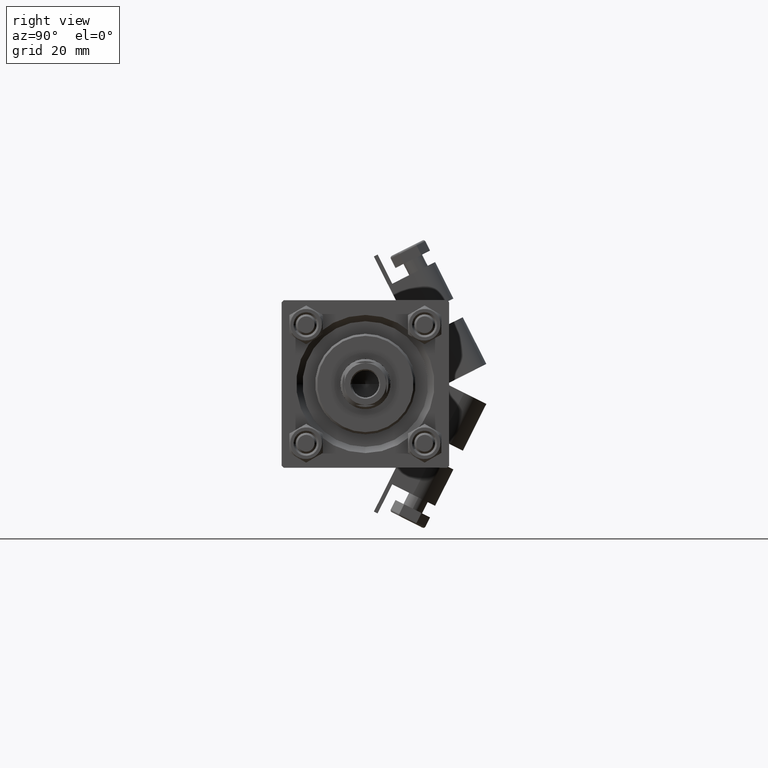
[diagram: clean part render]
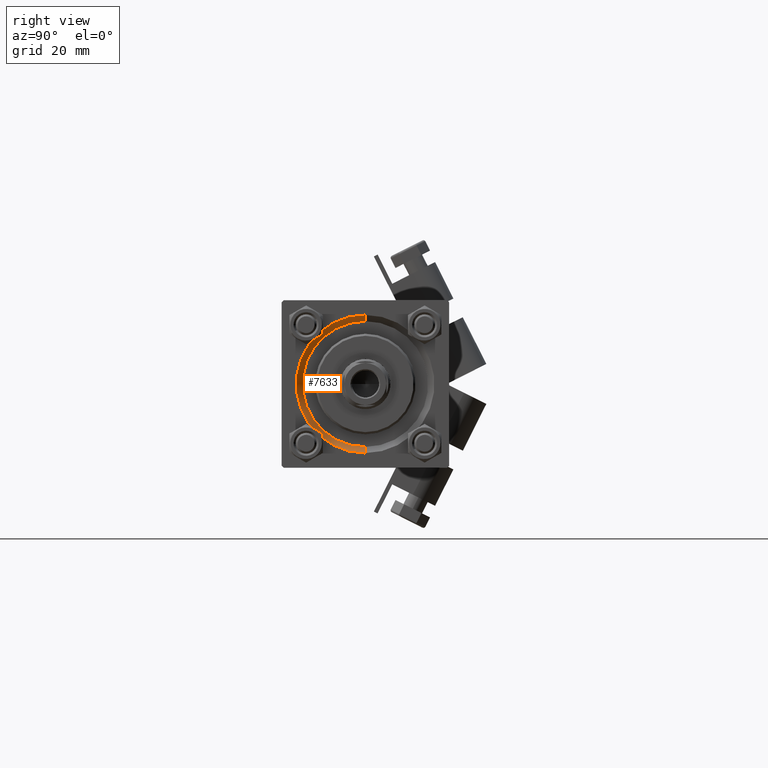
[diagram: same view with one face highlighted and labeled with its STEP entity id]
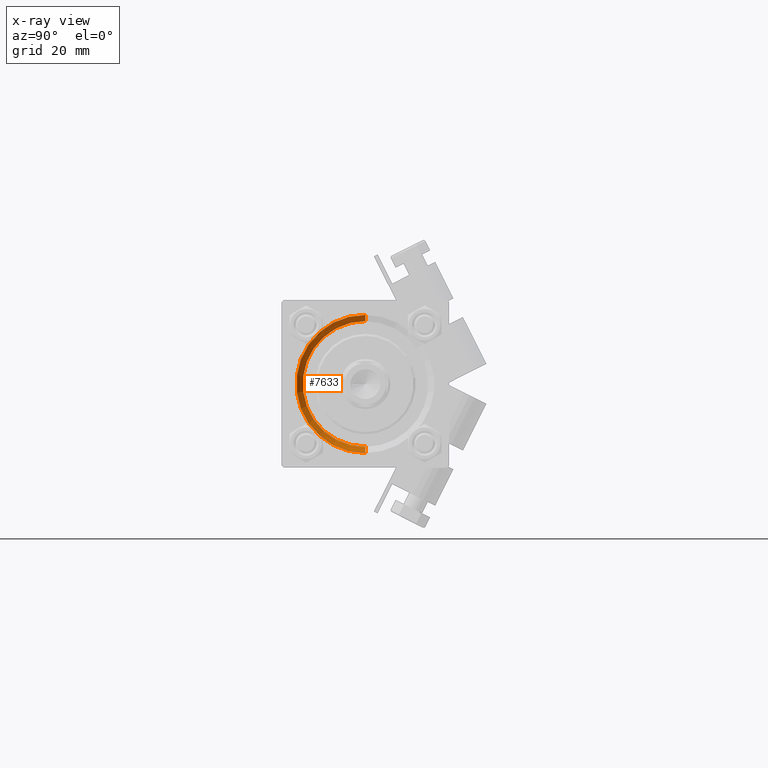
[diagram: x-ray of the same camera — body ghosted, the highlighted face saturated]
A machine part, right view. The second image highlights one B-rep face of the part: STEP entity #7633.
The next image is the same camera in x-ray: the body ghosted, the highlighted face saturated — about 0% of this face is hidden behind the body in this view.
In plain terms, the highlighted conical surface has half-angle 45 deg.
Its self-contained STEP definition (entity closure, byte-faithful):
#905 = DIRECTION ( 'NONE',  ( 0.7071067811865474617, 8.659560562354932858E-17, 0.7071067811865474617 ) ) ;
#3782 = DIRECTION ( 'NONE',  ( -1.000000000000000000, -0.000000000000000000, -0.000000000000000000 ) ) ;
#6159 = EDGE_CURVE ( 'NONE', #15897, #31803, #33470, .T. ) ;
#6543 = ORIENTED_EDGE ( 'NONE', *, *, #6159, .F. ) ;
#7633 = ADVANCED_FACE ( 'NONE', ( #7932 ), #30696, .F. ) ;
#7932 = FACE_OUTER_BOUND ( 'NONE', #28712, .T. ) ;
#12533 = CARTESIAN_POINT ( 'NONE',  ( 119.0000000000000142, 0.000000000000000000, 0.000000000000000000 ) ) ;
#13307 = CARTESIAN_POINT ( 'NONE',  ( 117.5000000000000000, 0.000000000000000000, -15.00000000000000000 ) ) ;
#13868 = VERTEX_POINT ( 'NONE', #32118 ) ;
#15897 = VERTEX_POINT ( 'NONE', #13307 ) ;
#16863 = CARTESIAN_POINT ( 'NONE',  ( 117.5000000000000000, 1.836970198721029589E-15, 15.00000000000000000 ) ) ;
#17419 = CIRCLE ( 'NONE', #19053, 16.50000000000001421 ) ;
#17501 = VERTEX_POINT ( 'NONE', #17606 ) ;
#17606 = CARTESIAN_POINT ( 'NONE',  ( 117.5000000000000000, 1.836970198721029589E-15, 15.00000000000000000 ) ) ;
#19053 = AXIS2_PLACEMENT_3D ( 'NONE', #12533, #3782, #27696 ) ;
#20466 = LINE ( 'NONE', #16863, #32153 ) ;
#21113 = ORIENTED_EDGE ( 'NONE', *, *, #33876, .F. ) ;
#23335 = AXIS2_PLACEMENT_3D ( 'NONE', #27734, #23880, #42903 ) ;
#23880 = DIRECTION ( 'NONE',  ( 1.000000000000000000, 0.000000000000000000, 0.000000000000000000 ) ) ;
#25627 = AXIS2_PLACEMENT_3D ( 'NONE', #41619, #44971, #33892 ) ;
#26292 = EDGE_CURVE ( 'NONE', #17501, #13868, #20466, .T. ) ;
#27696 = DIRECTION ( 'NONE',  ( 0.000000000000000000, 0.000000000000000000, 1.000000000000000000 ) ) ;
#27734 = CARTESIAN_POINT ( 'NONE',  ( 117.5000000000000000, 0.000000000000000000, 0.000000000000000000 ) ) ;
#28712 = EDGE_LOOP ( 'NONE', ( #47652, #50150, #21113, #6543 ) ) ;
#28920 = CIRCLE ( 'NONE', #25627, 15.00000000000000000 ) ;
#29385 = EDGE_CURVE ( 'NONE', #17501, #15897, #28920, .T. ) ;
#29870 = DIRECTION ( 'NONE',  ( 0.7071067811865474617, 0.000000000000000000, -0.7071067811865474617 ) ) ;
#30696 = CONICAL_SURFACE ( 'NONE', #23335, 15.00000000000000000, 0.7853981633974482790 ) ;
#31476 = VECTOR ( 'NONE', #29870, 1000.000000000000114 ) ;
#31803 = VERTEX_POINT ( 'NONE', #46686 ) ;
#32118 = CARTESIAN_POINT ( 'NONE',  ( 119.0000000000000142, 2.020667218593134678E-15, 16.50000000000001421 ) ) ;
#32153 = VECTOR ( 'NONE', #905, 1000.000000000000114 ) ;
#33470 = LINE ( 'NONE', #33708, #31476 ) ;
#33708 = CARTESIAN_POINT ( 'NONE',  ( 117.5000000000000000, 0.000000000000000000, -15.00000000000000000 ) ) ;
#33876 = EDGE_CURVE ( 'NONE', #31803, #13868, #17419, .T. ) ;
#33892 = DIRECTION ( 'NONE',  ( 0.000000000000000000, 0.000000000000000000, 1.000000000000000000 ) ) ;
#41619 = CARTESIAN_POINT ( 'NONE',  ( 117.5000000000000000, 0.000000000000000000, 0.000000000000000000 ) ) ;
#42903 = DIRECTION ( 'NONE',  ( 0.000000000000000000, 0.000000000000000000, -1.000000000000000000 ) ) ;
#44971 = DIRECTION ( 'NONE',  ( 1.000000000000000000, 0.000000000000000000, 0.000000000000000000 ) ) ;
#46686 = CARTESIAN_POINT ( 'NONE',  ( 119.0000000000000142, 0.000000000000000000, -16.50000000000001421 ) ) ;
#47652 = ORIENTED_EDGE ( 'NONE', *, *, #29385, .F. ) ;
#50150 = ORIENTED_EDGE ( 'NONE', *, *, #26292, .T. ) ;